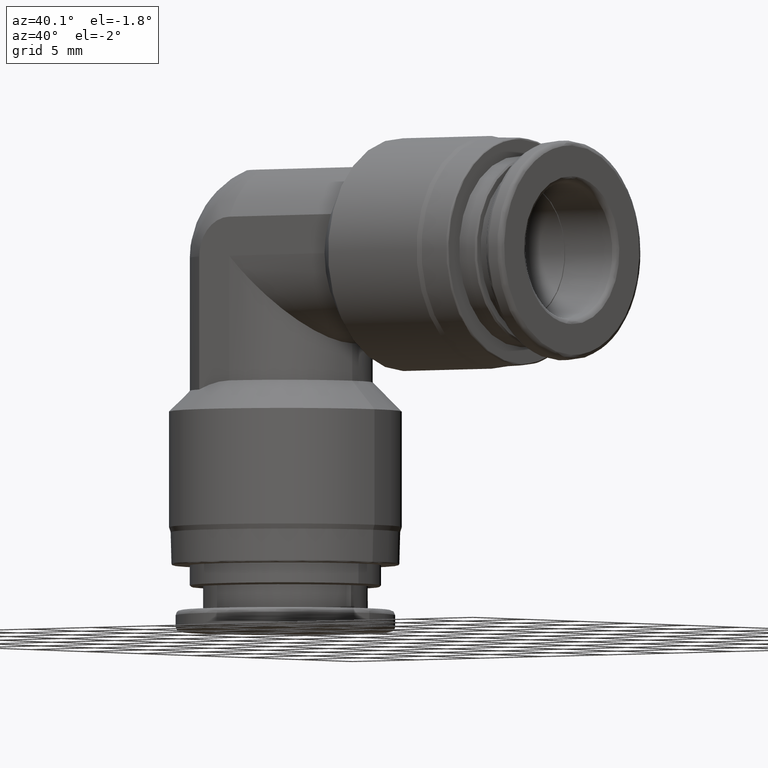
[diagram: clean part render]
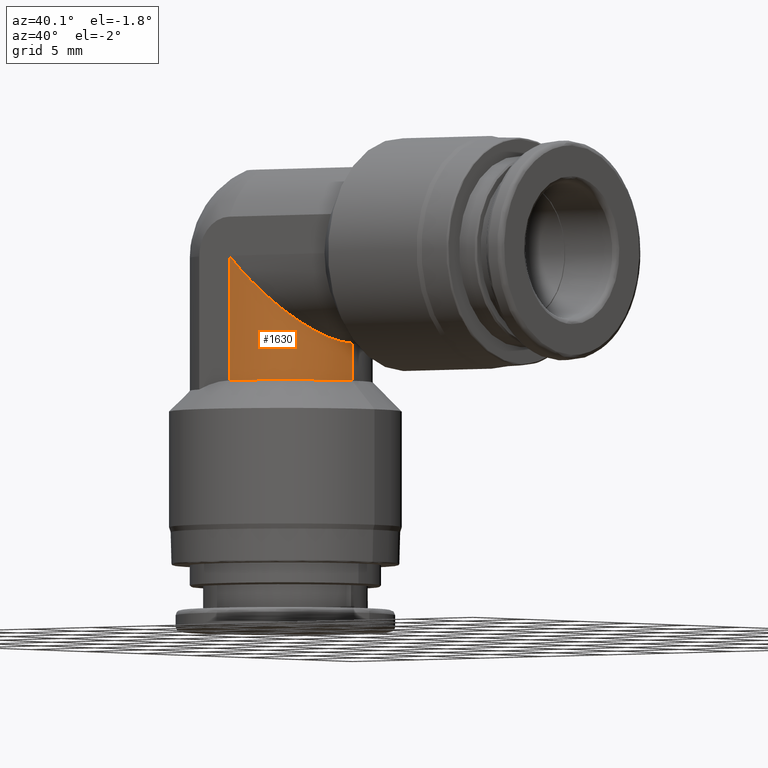
[diagram: same view with one face highlighted and labeled with its STEP entity id]
A machine part, auxiliary view. The second image highlights one B-rep face of the part: STEP entity #1630.
In plain terms, the highlighted cylindrical surface (partial cylindrical patch) has radius 5.25 mm, axis along (0, 0, 1).
Its self-contained STEP definition (entity closure, byte-faithful):
#86 = CARTESIAN_POINT ( 'NONE',  ( 0.09346274877189375600, -0.1843918867499676500, -0.09344444022332819300 ) ) ;
#97 = CARTESIAN_POINT ( 'NONE',  ( 0.1934173573474371700, -0.07295871579826056200, -0.1934173406364673400 ) ) ;
#178 = CARTESIAN_POINT ( 'NONE',  ( 0.05167339372339020000, -0.2001606252846327400, -0.05166967600905316600 ) ) ;
#257 = VECTOR ( 'NONE', #1239, 39.37007874015748100 ) ;
#265 = EDGE_CURVE ( 'NONE', #413, #3233, #1610, .T. ) ;
#313 = DIRECTION ( 'NONE',  ( -1.171453342316279900E-015, 0.0000000000000000000, -1.000000000000000000 ) ) ;
#362 = CARTESIAN_POINT ( 'NONE',  ( 0.1945247469252648900, -0.06994865031225631900, -0.1945237781891853400 ) ) ;
#372 = CARTESIAN_POINT ( 'NONE',  ( 0.09010565488252762800, -0.1860572738336636900, -0.09009297612756193800 ) ) ;
#385 = CARTESIAN_POINT ( 'NONE',  ( 0.2066929133858266800, 0.0000000000000000000, -0.07874015748031520900 ) ) ;
#407 = CARTESIAN_POINT ( 'NONE',  ( 0.04652583525024193300, -0.2013961788875720200, -0.04652379935761399900 ) ) ;
#413 = VERTEX_POINT ( 'NONE', #967 ) ;
#419 = CARTESIAN_POINT ( 'NONE',  ( 0.04078448812609758400, -0.2026328255304647200, -0.04078417624052174700 ) ) ;
#455 = CARTESIAN_POINT ( 'NONE',  ( 0.03767510756379124200, -0.2032302906424313700, -0.03767510750293140400 ) ) ;
#465 = VERTEX_POINT ( 'NONE', #2021 ) ;
#588 = DIRECTION ( 'NONE',  ( 1.000000000000000000, 0.0000000000000000000, -1.156482317307651600E-015 ) ) ;
#627 = CARTESIAN_POINT ( 'NONE',  ( 0.1269811135736402800, -0.1636940104671578400, -0.1269423279758275000 ) ) ;
#640 = CARTESIAN_POINT ( 'NONE',  ( 0.1474468918223438600, -0.1448502158732688200, -0.1474467443078292500 ) ) ;
#652 = CARTESIAN_POINT ( 'NONE',  ( 0.1652599838819339400, -0.1243496543704943100, -0.1652421917667729600 ) ) ;
#671 = EDGE_CURVE ( 'NONE', #413, #465, #2051, .T. ) ;
#700 = CYLINDRICAL_SURFACE ( 'NONE', #2812, 0.2066929133858267900 ) ;
#718 = VERTEX_POINT ( 'NONE', #1519 ) ;
#753 = B_SPLINE_CURVE_WITH_KNOTS ( 'NONE', 3,
 ( #1493, #1761, #1236, #1515, #3482, #2624, #1790, #362, #97, #2324, #1247, #1751, #652, #2910, #3192, #2059, #957, #640, #2931, #3216, #3434, #627, #2602, #915, #86, #372, #2045, #2104, #1814, #3262, #1847, #2381, #2695, #3531, #1528, #1577, #178, #407, #981, #419, #2394, #2974, #2149, #1549, #455, #1008, #3524, #2998 ),
 .UNSPECIFIED., .F., .F.,
 ( 4, 2, 2, 2, 2, 2, 2, 1, 1, 1, 2, 2, 2, 2, 2, 1, 1, 1, 2, 2, 2, 2, 1, 1, 1, 1, 2, 2, 4 ),
 ( 0.5000000000000000000, 0.5624999999999994400, 0.5937499999999991100, 0.6093749999999990000, 0.6249999999999987800, 0.6874999999999980000, 0.7187499999999975600, 0.7343749999999974500, 0.7421874999999974500, 0.7460937499999974500, 0.7480468749999974500, 0.7499999999999974500, 0.8124999999999978900, 0.8437499999999981100, 0.8593749999999982200, 0.8671874999999982200, 0.8710937499999982200, 0.8730468749999982200, 0.8740234374999982200, 0.8749999999999982200, 0.9062499999999986700, 0.9218749999999988900, 0.9296874999999991100, 0.9335937499999991100, 0.9355468749999991100, 0.9365234374999991100, 0.9370117187499991100, 0.9374999999999991100, 1.000000000000000000 ),
 .UNSPECIFIED. ) ;
#915 = CARTESIAN_POINT ( 'NONE',  ( 0.1032731435295015500, -0.1791965114688801000, -0.1032397388720939400 ) ) ;
#957 = CARTESIAN_POINT ( 'NONE',  ( 0.1484097469158512400, -0.1438679172598929200, -0.1484093481869062900 ) ) ;
#967 = CARTESIAN_POINT ( 'NONE',  ( 0.2066929133876529200, 0.0000000000000000000, -0.2952755905509125700 ) ) ;
#981 = CARTESIAN_POINT ( 'NONE',  ( 0.04390984955416797600, -0.2019892320761568500, -0.04390875292686467800 ) ) ;
#1008 = CARTESIAN_POINT ( 'NONE',  ( 0.02933730451679733900, -0.2047732213957592100, -0.02933731230686760200 ) ) ;
#1236 = CARTESIAN_POINT ( 'NONE',  ( 0.2054948272423952600, -0.02573843899818769500, -0.2054835583352289100 ) ) ;
#1239 = DIRECTION ( 'NONE',  ( 1.171453342316279900E-015, 0.0000000000000000000, 1.000000000000000000 ) ) ;
#1247 = CARTESIAN_POINT ( 'NONE',  ( 0.1809460609584278300, -0.1008883307962451200, -0.1809249679567322100 ) ) ;
#1272 = EDGE_CURVE ( 'NONE', #465, #718, #753, .T. ) ;
#1413 = VECTOR ( 'NONE', #3203, 39.37007874015748100 ) ;
#1479 = DIRECTION ( 'NONE',  ( 1.171453342316279900E-015, 0.0000000000000000000, 1.000000000000000000 ) ) ;
#1493 = CARTESIAN_POINT ( 'NONE',  ( 0.2066929133858266800, 1.265629073921969400E-017, -0.2066929133858267900 ) ) ;
#1502 = CARTESIAN_POINT ( 'NONE',  ( 3.414809992080329000E-016, -0.2066929133858267900, -4.895471604646378500E-016 ) ) ;
#1515 = CARTESIAN_POINT ( 'NONE',  ( 0.2018668787866929000, -0.04487628993377877600, -0.2018554931834351800 ) ) ;
#1519 = CARTESIAN_POINT ( 'NONE',  ( 1.696360597987210600E-016, -0.2066929133858267900, -9.492218054414774700E-018 ) ) ;
#1528 = CARTESIAN_POINT ( 'NONE',  ( 0.06461033104003043000, -0.1964487673901018600, -0.06460599578566891800 ) ) ;
#1549 = CARTESIAN_POINT ( 'NONE',  ( 0.03783881310360034900, -0.2031998969440887100, -0.03783881133727378500 ) ) ;
#1577 = CARTESIAN_POINT ( 'NONE',  ( 0.05499247441474387100, -0.1992710499852716200, -0.05498797216326662500 ) ) ;
#1610 = CIRCLE ( 'NONE', #2314, 0.2066929133876532800 ) ;
#1630 = ADVANCED_FACE ( 'NONE', ( #1885 ), #700, .T. ) ;
#1699 = CARTESIAN_POINT ( 'NONE',  ( -9.224042065482480400E-017, 0.0000000000000000000, -0.07874015748031496000 ) ) ;
#1751 = CARTESIAN_POINT ( 'NONE',  ( 0.1694399489924644500, -0.1185814365116968200, -0.1694182949316497000 ) ) ;
#1761 = CARTESIAN_POINT ( 'NONE',  ( 0.2066929133858266000, -0.01282962716312855400, -0.2066929133858268200 ) ) ;
#1790 = CARTESIAN_POINT ( 'NONE',  ( 0.1966436309075828800, -0.06374930015558610800, -0.1966401495277317300 ) ) ;
#1814 = CARTESIAN_POINT ( 'NONE',  ( 0.07922366029158704700, -0.1909115068377484100, -0.07922291369428873000 ) ) ;
#1847 = CARTESIAN_POINT ( 'NONE',  ( 0.07698359108751176600, -0.1918216512223142300, -0.07698352054728552200 ) ) ;
#1885 = FACE_OUTER_BOUND ( 'NONE', #2887, .T. ) ;
#1979 = LINE ( 'NONE', #1502, #1413 ) ;
#1993 = CARTESIAN_POINT ( 'NONE',  ( -3.459015774552784600E-016, 0.0000000000000000000, -0.2952755905509122900 ) ) ;
#2021 = CARTESIAN_POINT ( 'NONE',  ( 0.2066929133858266800, 1.265629073921969400E-017, -0.2066929133858267900 ) ) ;
#2045 = CARTESIAN_POINT ( 'NONE',  ( 0.08494205062029666600, -0.1884420412657845700, -0.08493623316464607400 ) ) ;
#2051 = LINE ( 'NONE', #385, #257 ) ;
#2059 = CARTESIAN_POINT ( 'NONE',  ( 0.1506289704672390800, -0.1415582045192608200, -0.1506274885325385200 ) ) ;
#2073 = EDGE_CURVE ( 'NONE', #3233, #718, #1979, .T. ) ;
#2104 = CARTESIAN_POINT ( 'NONE',  ( 0.08232827575383978900, -0.1896060906197574400, -0.08232547497837150500 ) ) ;
#2149 = CARTESIAN_POINT ( 'NONE',  ( 0.03806682830541210200, -0.2031573047614673700, -0.03806682027333294800 ) ) ;
#2262 = ORIENTED_EDGE ( 'NONE', *, *, #671, .T. ) ;
#2292 = DIRECTION ( 'NONE',  ( 1.000000000000000000, 0.0000000000000000000, -1.156482317317871100E-015 ) ) ;
#2314 = AXIS2_PLACEMENT_3D ( 'NONE', #1993, #313, #588 ) ;
#2324 = CARTESIAN_POINT ( 'NONE',  ( 0.1872338345035098300, -0.08857797641322340300, -0.1872339013473904600 ) ) ;
#2381 = CARTESIAN_POINT ( 'NONE',  ( 0.07653356523763281400, -0.1920016473012702300, -0.07653355027653215000 ) ) ;
#2394 = CARTESIAN_POINT ( 'NONE',  ( 0.03920354907753439300, -0.2029419020001814200, -0.03920346560139973500 ) ) ;
#2440 = ORIENTED_EDGE ( 'NONE', *, *, #2073, .F. ) ;
#2526 = ORIENTED_EDGE ( 'NONE', *, *, #265, .F. ) ;
#2602 = CARTESIAN_POINT ( 'NONE',  ( 0.1094648848165520300, -0.1754676391584659200, -0.1094244797865604200 ) ) ;
#2624 = CARTESIAN_POINT ( 'NONE',  ( 0.1976277922965045100, -0.06062905829274623000, -0.1976227505063425100 ) ) ;
#2654 = CARTESIAN_POINT ( 'NONE',  ( 3.611839760110788400E-016, -0.2066929133858269000, -0.2952755905514892800 ) ) ;
#2695 = CARTESIAN_POINT ( 'NONE',  ( 0.07625487170826789100, -0.1921124392806277700, -0.07625487134336680900 ) ) ;
#2812 = AXIS2_PLACEMENT_3D ( 'NONE', #1699, #1479, #2292 ) ;
#2887 = EDGE_LOOP ( 'NONE', ( #2526, #2262, #3627, #2440 ) ) ;
#2910 = CARTESIAN_POINT ( 'NONE',  ( 0.1584769166639311300, -0.1327402046153073300, -0.1584672187846842300 ) ) ;
#2931 = CARTESIAN_POINT ( 'NONE',  ( 0.1468023806794249200, -0.1455033744400993100, -0.1468023478768051300 ) ) ;
#2974 = CARTESIAN_POINT ( 'NONE',  ( 0.03840852656158969000, -0.2030931791927502400, -0.03840850470785112800 ) ) ;
#2998 = CARTESIAN_POINT ( 'NONE',  ( 1.696360597987210600E-016, -0.2066929133858267900, -9.492218054414774700E-018 ) ) ;
#3192 = CARTESIAN_POINT ( 'NONE',  ( 0.1549572352325387100, -0.1368699847282496000, -0.1549520277349462300 ) ) ;
#3203 = DIRECTION ( 'NONE',  ( -0.0000000000000000000, 3.698442877571480200E-016, 1.000000000000000000 ) ) ;
#3216 = CARTESIAN_POINT ( 'NONE',  ( 0.1464325528569979100, -0.1458753684996456400, -0.1464325513027538700 ) ) ;
#3233 = VERTEX_POINT ( 'NONE', #2654 ) ;
#3262 = CARTESIAN_POINT ( 'NONE',  ( 0.07765765770345109400, -0.1915506688082759800, -0.07765746386889009500 ) ) ;
#3434 = CARTESIAN_POINT ( 'NONE',  ( 0.1372390109606870000, -0.1550689103959566100, -0.1372390606964960800 ) ) ;
#3482 = CARTESIAN_POINT ( 'NONE',  ( 0.2003530962392930700, -0.05121780437883249900, -0.2003437993701877600 ) ) ;
#3524 = CARTESIAN_POINT ( 'NONE',  ( 0.01680048782965295300, -0.2066929133858268500, -0.01680048782965294600 ) ) ;
#3531 = CARTESIAN_POINT ( 'NONE',  ( 0.07056884673678555400, -0.1943634847154301100, -0.07056885841361973400 ) ) ;
#3627 = ORIENTED_EDGE ( 'NONE', *, *, #1272, .T. ) ;